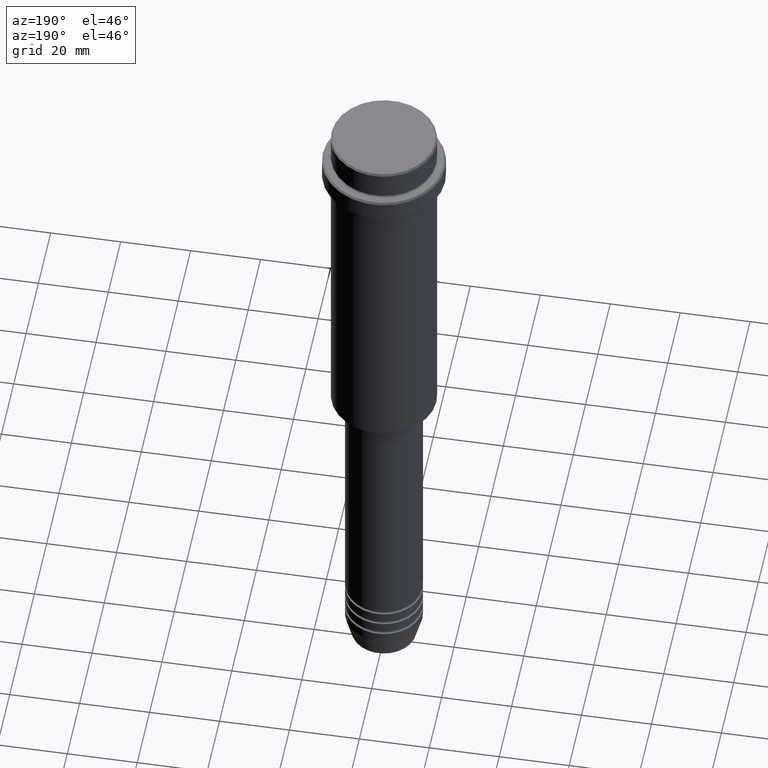
[diagram: clean part render]
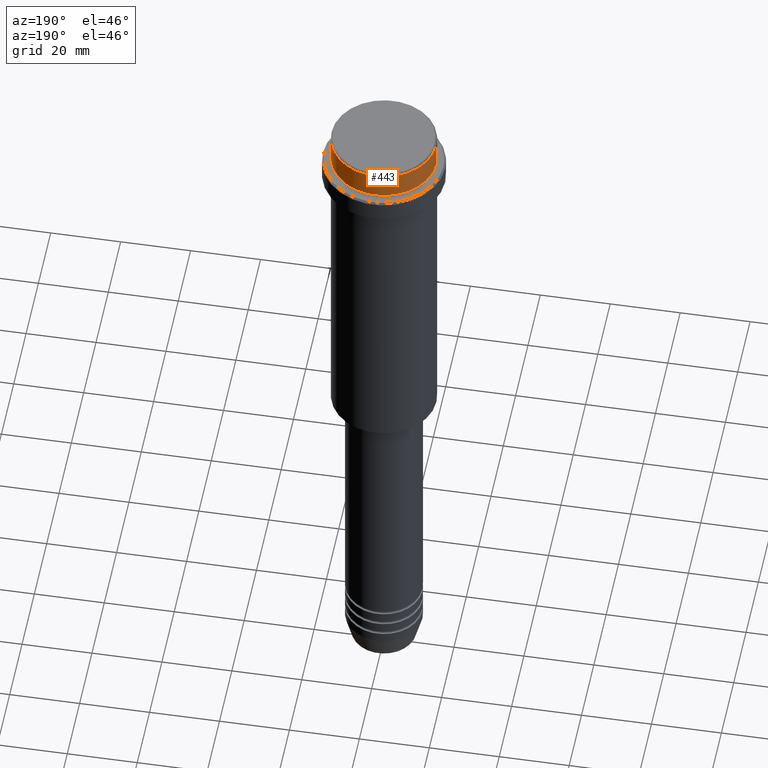
[diagram: same view with one face highlighted and labeled with its STEP entity id]
A machine part, auxiliary view. The second image highlights one B-rep face of the part: STEP entity #443.
In plain terms, the highlighted cylindrical surface (partial cylindrical patch) has radius 15 mm, axis along (-0, -0, 1).
Its self-contained STEP definition (entity closure, byte-faithful):
#45 = CARTESIAN_POINT ( 'NONE',  ( -15.00000000000000000, 1.836970198721029589E-15, -7.999999999999998224 ) ) ;
#47 = CARTESIAN_POINT ( 'NONE',  ( 15.00000000000000000, 0.000000000000000000, -7.999999999999998224 ) ) ;
#62 = AXIS2_PLACEMENT_3D ( 'NONE', #1077, #1405, #557 ) ;
#98 = DIRECTION ( 'NONE',  ( -0.000000000000000000, -0.000000000000000000, 1.000000000000000000 ) ) ;
#125 = ORIENTED_EDGE ( 'NONE', *, *, #410, .T. ) ;
#140 = EDGE_CURVE ( 'NONE', #353, #1043, #890, .T. ) ;
#224 = DIRECTION ( 'NONE',  ( 0.000000000000000000, 0.000000000000000000, -1.000000000000000000 ) ) ;
#237 = DIRECTION ( 'NONE',  ( -0.000000000000000000, -0.000000000000000000, 1.000000000000000000 ) ) ;
#302 = CIRCLE ( 'NONE', #843, 15.00000000000000000 ) ;
#321 = DIRECTION ( 'NONE',  ( 1.000000000000000000, 0.000000000000000000, 0.000000000000000000 ) ) ;
#353 = VERTEX_POINT ( 'NONE', #47 ) ;
#410 = EDGE_CURVE ( 'NONE', #353, #1086, #302, .T. ) ;
#443 = ADVANCED_FACE ( 'NONE', ( #638 ), #981, .T. ) ;
#455 = VERTEX_POINT ( 'NONE', #1393 ) ;
#466 = CARTESIAN_POINT ( 'NONE',  ( 15.00000000000000000, 0.000000000000000000, 0.000000000000000000 ) ) ;
#508 = EDGE_CURVE ( 'NONE', #455, #1043, #1073, .T. ) ;
#557 = DIRECTION ( 'NONE',  ( 1.000000000000000000, 0.000000000000000000, 0.000000000000000000 ) ) ;
#559 = LINE ( 'NONE', #872, #1030 ) ;
#638 = FACE_OUTER_BOUND ( 'NONE', #1310, .T. ) ;
#647 = CARTESIAN_POINT ( 'NONE',  ( 0.000000000000000000, 0.000000000000000000, -7.999999999999998224 ) ) ;
#750 = ORIENTED_EDGE ( 'NONE', *, *, #1402, .T. ) ;
#813 = ORIENTED_EDGE ( 'NONE', *, *, #140, .F. ) ;
#843 = AXIS2_PLACEMENT_3D ( 'NONE', #647, #98, #1067 ) ;
#872 = CARTESIAN_POINT ( 'NONE',  ( -15.00000000000000000, 1.836970198721029589E-15, 0.000000000000000000 ) ) ;
#890 = LINE ( 'NONE', #466, #1165 ) ;
#981 = CYLINDRICAL_SURFACE ( 'NONE', #62, 15.00000000000000000 ) ;
#1001 = CARTESIAN_POINT ( 'NONE',  ( 15.00000000000000000, 0.000000000000000000, -0.5000000000000108802 ) ) ;
#1030 = VECTOR ( 'NONE', #1218, 1000.000000000000000 ) ;
#1043 = VERTEX_POINT ( 'NONE', #1001 ) ;
#1067 = DIRECTION ( 'NONE',  ( 1.000000000000000000, 0.000000000000000000, 0.000000000000000000 ) ) ;
#1073 = CIRCLE ( 'NONE', #1413, 15.00000000000000000 ) ;
#1077 = CARTESIAN_POINT ( 'NONE',  ( 0.000000000000000000, 0.000000000000000000, 0.000000000000000000 ) ) ;
#1086 = VERTEX_POINT ( 'NONE', #45 ) ;
#1165 = VECTOR ( 'NONE', #237, 1000.000000000000000 ) ;
#1206 = CARTESIAN_POINT ( 'NONE',  ( 0.000000000000000000, 0.000000000000000000, -0.5000000000000108802 ) ) ;
#1218 = DIRECTION ( 'NONE',  ( -0.000000000000000000, -0.000000000000000000, 1.000000000000000000 ) ) ;
#1228 = ORIENTED_EDGE ( 'NONE', *, *, #508, .T. ) ;
#1310 = EDGE_LOOP ( 'NONE', ( #125, #750, #1228, #813 ) ) ;
#1393 = CARTESIAN_POINT ( 'NONE',  ( -15.00000000000000000, 1.836970198721029589E-15, -0.5000000000000108802 ) ) ;
#1402 = EDGE_CURVE ( 'NONE', #1086, #455, #559, .T. ) ;
#1405 = DIRECTION ( 'NONE',  ( -0.000000000000000000, -0.000000000000000000, 1.000000000000000000 ) ) ;
#1413 = AXIS2_PLACEMENT_3D ( 'NONE', #1206, #224, #321 ) ;